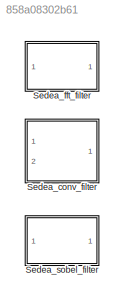
MODEL slx_858a08302b61
KIND library
CONFIG AbsTol = auto
CONFIG FixedStep = auto
CONFIG MaxStep = auto
CONFIG MinStep = auto
CONFIG RelTol = 1e-3
CONFIG SampleTimeConstraint = Unconstrained
CONFIG Solver = VariableStepAuto
CONFIG SolverMode = Auto
CONFIG SolverName = VariableStepAuto
CONFIG StartTime = 0.0
CONFIG StopTime = 10.0
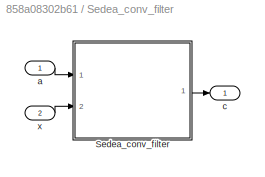
BLOCK [SubSystem] Sedea_conv_filter
  Ports = [2, 1]
  RTWSystemCode = Reusable function
  RequestExecContextInheritance = off
  TreatAsAtomicUnit = on
  Variant = off
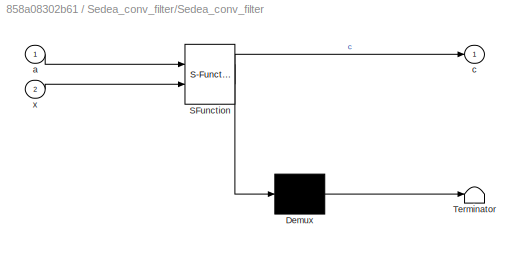
BLOCK [SubSystem] Sedea_conv_filter/Sedea_conv_filter
  ErrorFcn = Stateflow.Translate.translate
  PermitHierarchicalResolution = ExplicitOnly
  Ports = [2, 1]
  RTWSystemCode = Reusable function
  RequestExecContextInheritance = off
  SFBlockType = MATLAB Function
  TreatAsAtomicUnit = on
  Variant = off
BLOCK [Demux] Sedea_conv_filter/Sedea_conv_filter/ Demux 
  Outputs = 1
  Ports = [1, 1]
BLOCK [S-Function] Sedea_conv_filter/Sedea_conv_filter/ SFunction 
  EnableBusSupport = off
  FunctionName = sf_sfun
  Parameters = shape
  PortCounts = [2 2]
  Ports = [2, 2]
  SFunctionDeploymentMode = off
  Tag = Stateflow S-Function Sedea_Sul_filterlib 3
BLOCK [Terminator] Sedea_conv_filter/Sedea_conv_filter/ Terminator 
BLOCK [Inport] Sedea_conv_filter/Sedea_conv_filter/a
  IconDisplay = Port number
BLOCK [Outport] Sedea_conv_filter/Sedea_conv_filter/c
  IconDisplay = Port number
BLOCK [Inport] Sedea_conv_filter/Sedea_conv_filter/x
  IconDisplay = Port number
  Port = 2
BLOCK [Inport] Sedea_conv_filter/a
  IconDisplay = Port number
BLOCK [Outport] Sedea_conv_filter/c
  IconDisplay = Port number
BLOCK [Inport] Sedea_conv_filter/x
  IconDisplay = Port number
  Port = 2
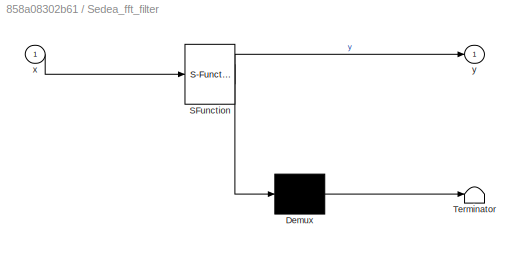
BLOCK [SubSystem] Sedea_fft_filter
  ErrorFcn = Stateflow.Translate.translate
  PermitHierarchicalResolution = ExplicitOnly
  Ports = [1, 1]
  RequestExecContextInheritance = off
  SFBlockType = MATLAB Function
  TreatAsAtomicUnit = on
  Variant = off
BLOCK [Demux] Sedea_fft_filter/ Demux 
  Outputs = 1
  Ports = [1, 1]
BLOCK [S-Function] Sedea_fft_filter/ SFunction 
  EnableBusSupport = off
  FunctionName = sf_sfun
  PortCounts = [1 2]
  Ports = [1, 2]
  SFunctionDeploymentMode = off
  Tag = Stateflow S-Function Sedea_Sul_filterlib 2
BLOCK [Terminator] Sedea_fft_filter/ Terminator 
BLOCK [Inport] Sedea_fft_filter/x
  IconDisplay = Port number
BLOCK [Outport] Sedea_fft_filter/y
  IconDisplay = Port number
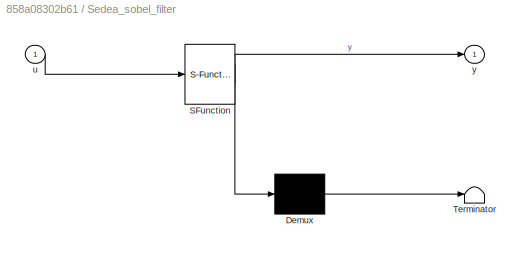
BLOCK [SubSystem] Sedea_sobel_filter
  ErrorFcn = Stateflow.Translate.translate
  PermitHierarchicalResolution = ExplicitOnly
  Ports = [1, 1]
  RequestExecContextInheritance = off
  SFBlockType = MATLAB Function
  TreatAsAtomicUnit = on
  Variant = off
BLOCK [Demux] Sedea_sobel_filter/ Demux 
  Outputs = 1
  Ports = [1, 1]
BLOCK [S-Function] Sedea_sobel_filter/ SFunction 
  EnableBusSupport = off
  FunctionName = sf_sfun
  PortCounts = [1 2]
  Ports = [1, 2]
  SFunctionDeploymentMode = off
  Tag = Stateflow S-Function Sedea_Sul_filterlib 1
BLOCK [Terminator] Sedea_sobel_filter/ Terminator 
BLOCK [Inport] Sedea_sobel_filter/u
  IconDisplay = Port number
BLOCK [Outport] Sedea_sobel_filter/y
  IconDisplay = Port number
LINE Sedea_conv_filter/Sedea_conv_filter:1 -> Sedea_conv_filter/c:1
LINE Sedea_conv_filter/a:1 -> Sedea_conv_filter/Sedea_conv_filter:1
LINE Sedea_conv_filter/x:1 -> Sedea_conv_filter/Sedea_conv_filter:2
CHART Sedea_sobel_filter states=1 transitions=1
  STATE_LABEL 'eML_blk_kernel()'
  STATE_LABEL 'SCRIPT:\nfunction y = Sedea_sobel_filter(u)\n%#codegen\n\ny = sedea_sobel(u);'
CHART Sedea_fft_filter states=1 transitions=1
  STATE_LABEL 'eML_blk_kernel()'
  STATE_LABEL 'SCRIPT:\nfunction y = Sedea_fft_filter(x)\n%#codegen\n\ny = fft(x);'
CHART Sedea_conv_filter/Sedea_conv_filter states=1 transitions=1
  STATE_LABEL 'eML_blk_kernel()'
  STATE_LABEL "SCRIPT:\nfunction c = Sedea_conv_filter(a, x, shape)\n%#codegen\nif shape == 1\n    c = conv(a, x, 'full');\nelseif shape == 2\n    c = conv(a, x, 'same');\nelse\n    c = conv(a, x, 'valid');\nend"
